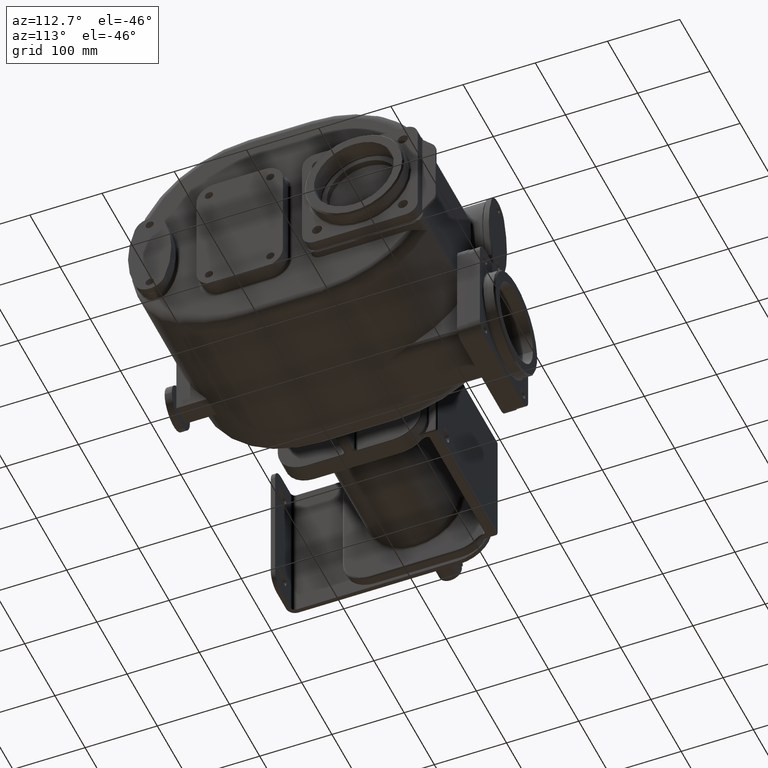
[diagram: clean part render]
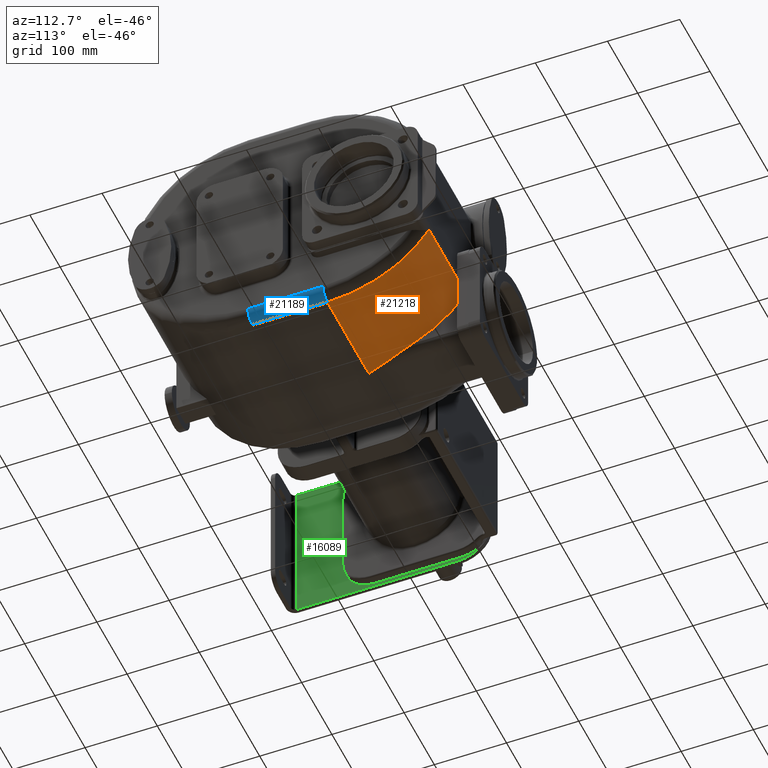
[diagram: same view with three faces highlighted in distinct colors, each labeled with its STEP entity id]
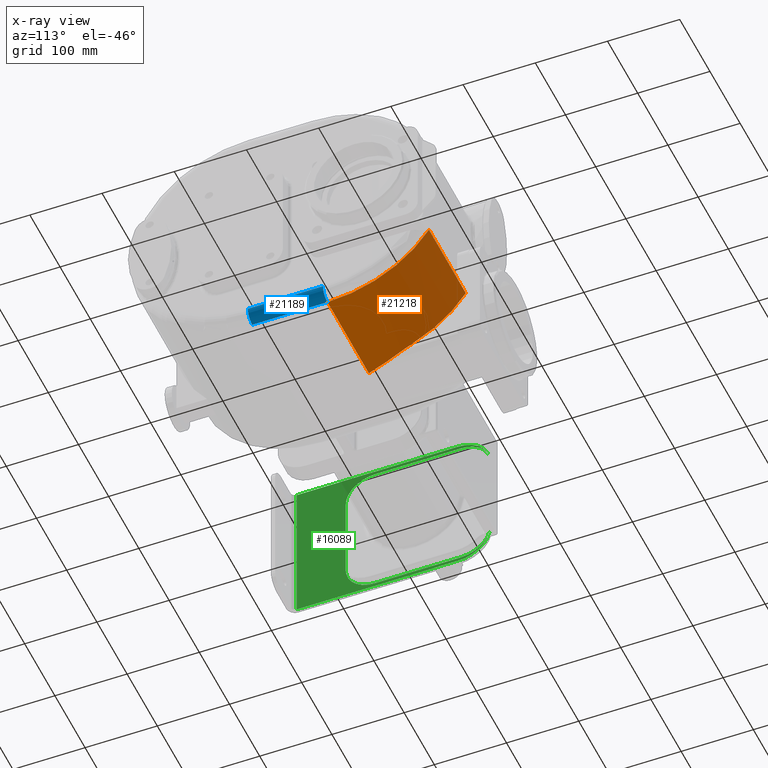
[diagram: x-ray of the same camera — body ghosted, the three highlighted faces saturated]
A machine part, auxiliary view with three faces highlighted in distinct colors.
The next image is the same camera in x-ray (body ghosted, the three faces saturated) — at least one of them is partly hidden behind the body in this view.
Their STEP definitions:

[orange] entity #21218 — the highlighted cylindrical surface (partial cylindrical patch) has radius 167 mm, axis along (-1, 0, 0).
#4891=DIRECTION('',(-1.E0,0.E0,0.E0));
#4892=VECTOR('',#4891,1.22E2);
#4893=CARTESIAN_POINT('',(1.65E2,4.126300369125E2,-9.009210526316E1));
#4894=LINE('',#4893,#4892);
#6333=CARTESIAN_POINT('',(4.3E1,2.720156259538E2,0.E0));
#6334=DIRECTION('',(-1.E0,0.E0,0.E0));
#6335=DIRECTION('',(0.E0,8.420024608303E-1,-5.394736842105E-1));
#6336=AXIS2_PLACEMENT_3D('',#6333,#6334,#6335);
#6338=DIRECTION('',(1.E0,-4.086087510520E-12,0.E0));
#6339=VECTOR('',#6338,1.37E2);
#6340=CARTESIAN_POINT('',(2.8E1,2.720156259538E2,-1.67E2));
#6341=LINE('',#6340,#6339);
#6342=CARTESIAN_POINT('',(1.65E2,2.720156259538E2,0.E0));
#6343=DIRECTION('',(1.E0,0.E0,0.E0));
#6344=DIRECTION('',(0.E0,0.E0,-1.E0));
#6345=AXIS2_PLACEMENT_3D('',#6342,#6343,#6344);
#6347=CARTESIAN_POINT('',(2.8E1,2.720156259538E2,-1.67E2));
#6348=CARTESIAN_POINT('',(2.830834885139E1,2.730444827745E2,-1.67E2));
#6349=CARTESIAN_POINT('',(2.892435779660E1,2.750998988701E2,-1.669809976328E2));
#6350=CARTESIAN_POINT('',(2.984465725162E1,2.781786198814E2,-1.668956875004E2));
#6351=CARTESIAN_POINT('',(3.075627439807E1,2.812442483610E2,-1.667541830496E2));
#6352=CARTESIAN_POINT('',(3.165540683728E1,2.842917909025E2,-1.665574567079E2));
#6353=CARTESIAN_POINT('',(3.253816530915E1,2.873157016175E2,-1.663068029501E2));
#6354=CARTESIAN_POINT('',(3.340041412278E1,2.903091960748E2,-1.660040166228E2));
#6355=CARTESIAN_POINT('',(3.423847604746E1,2.932665418675E2,-1.656512088716E2));
#6356=CARTESIAN_POINT('',(3.504926147554E1,2.961835297375E2,-1.652506141670E2));
#6357=CARTESIAN_POINT('',(3.582943626892E1,2.990544420615E2,-1.648049608440E2));
#6358=CARTESIAN_POINT('',(3.657618283952E1,3.018746495379E2,-1.643171519380E2));
#6359=CARTESIAN_POINT('',(3.728727170837E1,3.046409849532E2,-1.637900596433E2));
#6360=CARTESIAN_POINT('',(3.796031805540E1,3.073488519595E2,-1.632270316937E2));
#6361=CARTESIAN_POINT('',(3.859338093176E1,3.099943637529E2,-1.626315372619E2));
#6362=CARTESIAN_POINT('',(3.918528337408E1,3.125758779846E2,-1.620066870389E2));
#6363=CARTESIAN_POINT('',(3.973474223126E1,3.150903994155E2,-1.613560029741E2));
#6364=CARTESIAN_POINT('',(4.024078203433E1,3.175350944444E2,-1.606831312963E2));
#6365=CARTESIAN_POINT('',(4.070312035987E1,3.199093903479E2,-1.599911661569E2));
#6366=CARTESIAN_POINT('',(4.112136785618E1,3.222111595884E2,-1.592836712114E2));
#6367=CARTESIAN_POINT('',(4.149542650395E1,3.244384208090E2,-1.585642538950E2));
#6368=CARTESIAN_POINT('',(4.182556980927E1,3.265897956104E2,-1.578363957809E2));
#6369=CARTESIAN_POINT('',(4.211275451339E1,3.286672787650E2,-1.571023834251E2));
#6370=CARTESIAN_POINT('',(4.235781090306E1,3.306715082670E2,-1.563648291753E2));
#6371=CARTESIAN_POINT('',(4.256174165291E1,3.326035231612E2,-1.556261133982E2));
#6372=CARTESIAN_POINT('',(4.272568362714E1,3.344649693961E2,-1.548882574594E2));
#6373=CARTESIAN_POINT('',(4.285073318226E1,3.362563851865E2,-1.541535945333E2));
#6374=CARTESIAN_POINT('',(4.293804222602E1,3.379763103845E2,-1.534252539877E2));
#6375=CARTESIAN_POINT('',(4.298907953522E1,3.396251149577E2,-1.527055781307E2));
#6376=CARTESIAN_POINT('',(4.3E1,3.406758903896E2,-1.522336569012E2));
#6377=CARTESIAN_POINT('',(4.3E1,3.411893203759E2,-1.52E2));
#11651=CARTESIAN_POINT('',(2.8E1,2.720156259538E2,-1.67E2));
#11653=VERTEX_POINT('',#11651);
#11655=CARTESIAN_POINT('',(4.3E1,3.411893203759E2,-1.52E2));
#11657=VERTEX_POINT('',#11655);
#11723=CARTESIAN_POINT('',(1.65E2,2.720156259538E2,-1.67E2));
#11724=CARTESIAN_POINT('',(1.65E2,4.126300369125E2,-9.009210526316E1));
#11725=VERTEX_POINT('',#11723);
#11726=VERTEX_POINT('',#11724);
#11847=CARTESIAN_POINT('',(4.3E1,4.126300369125E2,-9.009210526316E1));
#11849=VERTEX_POINT('',#11847);
#21204=CARTESIAN_POINT('',(-7.E1,2.720156259538E2,0.E0));
#21205=DIRECTION('',(-1.E0,0.E0,0.E0));
#21206=DIRECTION('',(0.E0,0.E0,1.E0));
#21207=AXIS2_PLACEMENT_3D('',#21204,#21205,#21206);
#21208=CYLINDRICAL_SURFACE('',#21207,1.67E2);
#21209=ORIENTED_EDGE('',*,*,#19768,.T.);
#21211=ORIENTED_EDGE('',*,*,#21210,.F.);
#21213=ORIENTED_EDGE('',*,*,#21212,.T.);
#21214=ORIENTED_EDGE('',*,*,#21195,.T.);
#21215=ORIENTED_EDGE('',*,*,#19744,.T.);
#21216=EDGE_LOOP('',(#21209,#21211,#21213,#21214,#21215));
#21217=FACE_OUTER_BOUND('',#21216,.F.);
#21218=ADVANCED_FACE('',(#21217),#21208,.T.);
#6337=CIRCLE('',#6336,1.67E2);
#6346=CIRCLE('',#6345,1.67E2);
#6378=B_SPLINE_CURVE_WITH_KNOTS('',3,(#6347,#6348,#6349,#6350,#6351,#6352,#6353,
#6354,#6355,#6356,#6357,#6358,#6359,#6360,#6361,#6362,#6363,#6364,#6365,#6366,
#6367,#6368,#6369,#6370,#6371,#6372,#6373,#6374,#6375,#6376,#6377),
.UNSPECIFIED.,.F.,.F.,(4,1,1,1,1,1,1,1,1,1,1,1,1,1,1,1,1,1,1,1,1,1,1,1,1,1,1,1,
4),(0.E0,3.571428571429E-2,7.142857142857E-2,1.071428571429E-1,
1.428571428571E-1,1.785714285714E-1,2.142857142857E-1,2.5E-1,2.857142857143E-1,
3.214285714286E-1,3.571428571429E-1,3.928571428571E-1,4.285714285714E-1,
4.642857142857E-1,5.E-1,5.357142857143E-1,5.714285714286E-1,6.071428571429E-1,
6.428571428571E-1,6.785714285714E-1,7.142857142857E-1,7.5E-1,7.857142857143E-1,
8.214285714286E-1,8.571428571429E-1,8.928571428571E-1,9.285714285714E-1,
9.642857142857E-1,1.E0),.UNSPECIFIED.);
#19744=EDGE_CURVE('',#11726,#11849,#4894,.T.);
#19768=EDGE_CURVE('',#11849,#11657,#6337,.T.);
#21195=EDGE_CURVE('',#11725,#11726,#6346,.T.);
#21210=EDGE_CURVE('',#11653,#11657,#6378,.T.);
#21212=EDGE_CURVE('',#11653,#11725,#6341,.T.);

[blue] entity #21189 — the highlighted cylindrical surface (edge-blend (fillet) strip) has radius 15 mm, axis along (0, 1, 0).
#5921=DIRECTION('',(0.E0,1.E0,0.E0));
#5922=VECTOR('',#5921,1.040156259538E2);
#5923=CARTESIAN_POINT('',(1.8E2,1.68E2,-1.52E2));
#5924=LINE('',#5923,#5922);
#6270=CARTESIAN_POINT('',(1.65E2,1.68E2,-1.52E2));
#6271=DIRECTION('',(0.E0,1.E0,0.E0));
#6272=DIRECTION('',(1.E0,0.E0,0.E0));
#6273=AXIS2_PLACEMENT_3D('',#6270,#6271,#6272);
#6275=CARTESIAN_POINT('',(1.65E2,2.720156259538E2,-1.52E2));
#6276=DIRECTION('',(0.E0,1.E0,0.E0));
#6277=DIRECTION('',(1.E0,0.E0,0.E0));
#6278=AXIS2_PLACEMENT_3D('',#6275,#6276,#6277);
#6396=DIRECTION('',(0.E0,1.E0,0.E0));
#6397=VECTOR('',#6396,1.040156259532E2);
#6398=CARTESIAN_POINT('',(1.65E2,1.68E2,-1.67E2));
#6399=LINE('',#6398,#6397);
#11723=CARTESIAN_POINT('',(1.65E2,2.720156259538E2,-1.67E2));
#11725=VERTEX_POINT('',#11723);
#11727=CARTESIAN_POINT('',(1.8E2,2.720156259538E2,-1.52E2));
#11729=VERTEX_POINT('',#11727);
#11731=CARTESIAN_POINT('',(1.8E2,1.68E2,-1.52E2));
#11732=VERTEX_POINT('',#11731);
#11733=CARTESIAN_POINT('',(1.65E2,1.68E2,-1.67E2));
#11734=VERTEX_POINT('',#11733);
#21176=CARTESIAN_POINT('',(1.65E2,1.667065992051E2,-1.52E2));
#21177=DIRECTION('',(0.E0,1.E0,0.E0));
#21178=DIRECTION('',(1.E0,0.E0,0.E0));
#21179=AXIS2_PLACEMENT_3D('',#21176,#21177,#21178);
#21180=CYLINDRICAL_SURFACE('',#21179,1.5E1);
#21181=ORIENTED_EDGE('',*,*,#20850,.T.);
#21183=ORIENTED_EDGE('',*,*,#21182,.T.);
#21185=ORIENTED_EDGE('',*,*,#21184,.F.);
#21186=ORIENTED_EDGE('',*,*,#21164,.F.);
#21187=EDGE_LOOP('',(#21181,#21183,#21185,#21186));
#21188=FACE_OUTER_BOUND('',#21187,.F.);
#21189=ADVANCED_FACE('',(#21188),#21180,.T.);
#6274=CIRCLE('',#6273,1.5E1);
#6279=CIRCLE('',#6278,1.5E1);
#20850=EDGE_CURVE('',#11732,#11729,#5924,.T.);
#21164=EDGE_CURVE('',#11732,#11734,#6274,.T.);
#21182=EDGE_CURVE('',#11729,#11725,#6279,.T.);
#21184=EDGE_CURVE('',#11734,#11725,#6399,.T.);

[green] entity #16089 — the highlighted planar face has unit normal (1, 0, 0).
#1568=CARTESIAN_POINT('',(-3.785E2,2.3E2,6.E1));
#1569=DIRECTION('',(-1.E0,0.E0,0.E0));
#1570=DIRECTION('',(0.E0,2.984279490192E-14,1.E0));
#1571=AXIS2_PLACEMENT_3D('',#1568,#1569,#1570);
#1587=CARTESIAN_POINT('',(-3.785E2,2.25E2,-6.E1));
#1588=DIRECTION('',(1.E0,0.E0,0.E0));
#1589=DIRECTION('',(0.E0,0.E0,-1.E0));
#1590=AXIS2_PLACEMENT_3D('',#1587,#1588,#1589);
#1592=DIRECTION('',(0.E0,1.E0,0.E0));
#1593=VECTOR('',#1592,2.23E2);
#1594=CARTESIAN_POINT('',(-3.785E2,2.E0,-1.05E2));
#1595=LINE('',#1594,#1593);
#1596=DIRECTION('',(0.E0,-1.E0,0.E0));
#1597=VECTOR('',#1596,2.23E2);
#1598=CARTESIAN_POINT('',(-3.785E2,2.25E2,1.05E2));
#1599=LINE('',#1598,#1597);
#1600=CARTESIAN_POINT('',(-3.785E2,2.25E2,6.E1));
#1601=DIRECTION('',(1.E0,0.E0,0.E0));
#1602=DIRECTION('',(0.E0,1.E0,3.568503517373E-14));
#1603=AXIS2_PLACEMENT_3D('',#1600,#1601,#1602);
#1605=CARTESIAN_POINT('',(-3.785E2,1.1E2,6.E1));
#1606=DIRECTION('',(-1.E0,0.E0,0.E0));
#1607=DIRECTION('',(0.E0,-1.E0,0.E0));
#1608=AXIS2_PLACEMENT_3D('',#1605,#1606,#1607);
#1619=DIRECTION('',(0.E0,1.E0,0.E0));
#1620=VECTOR('',#1619,1.2E2);
#1621=CARTESIAN_POINT('',(-3.785E2,1.1E2,1.E2));
#1622=LINE('',#1621,#1620);
#2017=DIRECTION('',(0.E0,0.E0,1.E0));
#2018=VECTOR('',#2017,2.1E2);
#2019=CARTESIAN_POINT('',(-3.785E2,2.E0,-1.05E2));
#2020=LINE('',#2019,#2018);
#4138=CARTESIAN_POINT('',(-3.785E2,2.3E2,-6.E1));
#4139=DIRECTION('',(-1.E0,0.E0,0.E0));
#4140=DIRECTION('',(0.E0,1.E0,1.758593271006E-14));
#4141=AXIS2_PLACEMENT_3D('',#4138,#4139,#4140);
#4157=DIRECTION('',(0.E0,-1.E0,0.E0));
#4158=VECTOR('',#4157,1.2E2);
#4159=CARTESIAN_POINT('',(-3.785E2,2.3E2,-1.E2));
#4160=LINE('',#4159,#4158);
#4169=CARTESIAN_POINT('',(-3.785E2,1.1E2,-6.E1));
#4170=DIRECTION('',(-1.E0,0.E0,0.E0));
#4171=DIRECTION('',(0.E0,0.E0,-1.E0));
#4172=AXIS2_PLACEMENT_3D('',#4169,#4170,#4171);
#4183=DIRECTION('',(0.E0,0.E0,1.E0));
#4184=VECTOR('',#4183,1.2E2);
#4185=CARTESIAN_POINT('',(-3.785E2,7.E1,-6.E1));
#4186=LINE('',#4185,#4184);
#13253=CARTESIAN_POINT('',(-3.785E2,2.25E2,-1.05E2));
#13255=VERTEX_POINT('',#13253);
#13275=CARTESIAN_POINT('',(-3.785E2,2.E0,-1.05E2));
#13276=VERTEX_POINT('',#13275);
#13277=CARTESIAN_POINT('',(-3.785E2,2.E0,1.05E2));
#13278=VERTEX_POINT('',#13277);
#13279=CARTESIAN_POINT('',(-3.785E2,2.25E2,1.05E2));
#13280=VERTEX_POINT('',#13279);
#13369=CARTESIAN_POINT('',(-3.785E2,7.E1,6.E1));
#13370=CARTESIAN_POINT('',(-3.785E2,1.1E2,1.E2));
#13371=VERTEX_POINT('',#13369);
#13372=VERTEX_POINT('',#13370);
#13373=CARTESIAN_POINT('',(-3.785E2,2.3E2,1.E2));
#13374=VERTEX_POINT('',#13373);
#13375=CARTESIAN_POINT('',(-3.785E2,2.7E2,6.E1));
#13376=VERTEX_POINT('',#13375);
#13377=CARTESIAN_POINT('',(-3.785E2,2.7E2,-6.E1));
#13378=CARTESIAN_POINT('',(-3.785E2,2.3E2,-1.E2));
#13379=VERTEX_POINT('',#13377);
#13380=VERTEX_POINT('',#13378);
#13381=CARTESIAN_POINT('',(-3.785E2,1.1E2,-1.E2));
#13382=VERTEX_POINT('',#13381);
#13383=CARTESIAN_POINT('',(-3.785E2,7.E1,-6.E1));
#13384=VERTEX_POINT('',#13383);
#16059=CARTESIAN_POINT('',(-3.785E2,1.7E2,0.E0));
#16060=DIRECTION('',(1.E0,0.E0,0.E0));
#16061=DIRECTION('',(0.E0,0.E0,-1.E0));
#16062=AXIS2_PLACEMENT_3D('',#16059,#16060,#16061);
#16063=PLANE('',#16062);
#16065=ORIENTED_EDGE('',*,*,#16064,.F.);
#16067=ORIENTED_EDGE('',*,*,#16066,.F.);
#16069=ORIENTED_EDGE('',*,*,#16068,.F.);
#16071=ORIENTED_EDGE('',*,*,#16070,.F.);
#16073=ORIENTED_EDGE('',*,*,#16072,.F.);
#16075=ORIENTED_EDGE('',*,*,#16074,.F.);
#16077=ORIENTED_EDGE('',*,*,#16076,.F.);
#16079=ORIENTED_EDGE('',*,*,#16078,.T.);
#16081=ORIENTED_EDGE('',*,*,#16080,.F.);
#16083=ORIENTED_EDGE('',*,*,#16082,.F.);
#16084=ORIENTED_EDGE('',*,*,#16046,.F.);
#16086=ORIENTED_EDGE('',*,*,#16085,.F.);
#16087=EDGE_LOOP('',(#16065,#16067,#16069,#16071,#16073,#16075,#16077,#16079,
#16081,#16083,#16084,#16086));
#16088=FACE_OUTER_BOUND('',#16087,.F.);
#16089=ADVANCED_FACE('',(#16088),#16063,.T.);
#1572=CIRCLE('',#1571,4.E1);
#1591=CIRCLE('',#1590,4.5E1);
#1604=CIRCLE('',#1603,4.5E1);
#1609=CIRCLE('',#1608,4.E1);
#4142=CIRCLE('',#4141,4.E1);
#4173=CIRCLE('',#4172,4.E1);
#16046=EDGE_CURVE('',#13374,#13376,#1572,.T.);
#16064=EDGE_CURVE('',#13371,#13372,#1609,.T.);
#16066=EDGE_CURVE('',#13384,#13371,#4186,.T.);
#16068=EDGE_CURVE('',#13382,#13384,#4173,.T.);
#16070=EDGE_CURVE('',#13380,#13382,#4160,.T.);
#16072=EDGE_CURVE('',#13379,#13380,#4142,.T.);
#16074=EDGE_CURVE('',#13255,#13379,#1591,.T.);
#16076=EDGE_CURVE('',#13276,#13255,#1595,.T.);
#16078=EDGE_CURVE('',#13276,#13278,#2020,.T.);
#16080=EDGE_CURVE('',#13280,#13278,#1599,.T.);
#16082=EDGE_CURVE('',#13376,#13280,#1604,.T.);
#16085=EDGE_CURVE('',#13372,#13374,#1622,.T.);